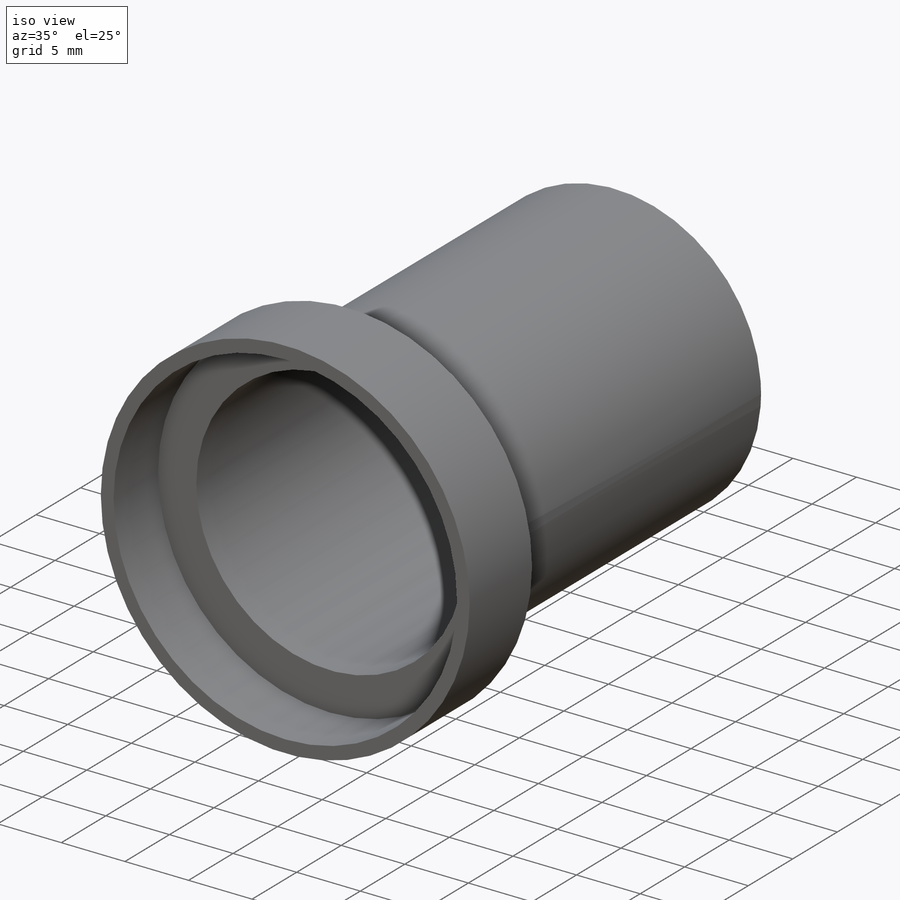
[diagram: iso view]
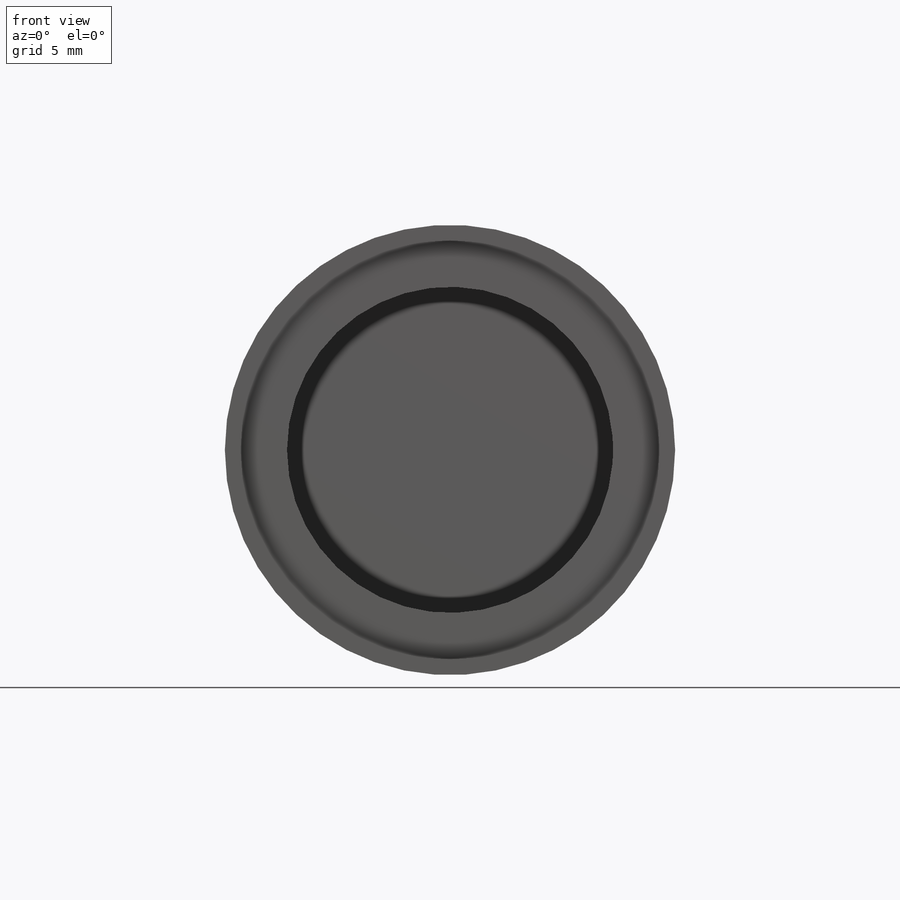
[diagram: front view]
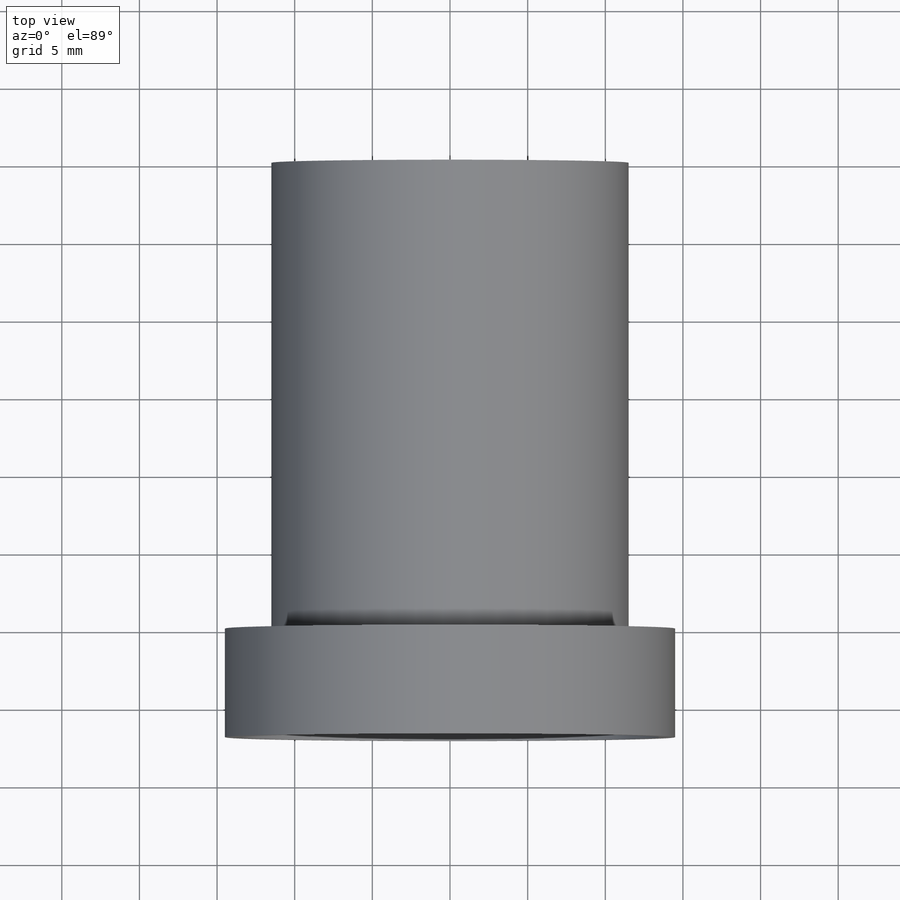
[diagram: top view]
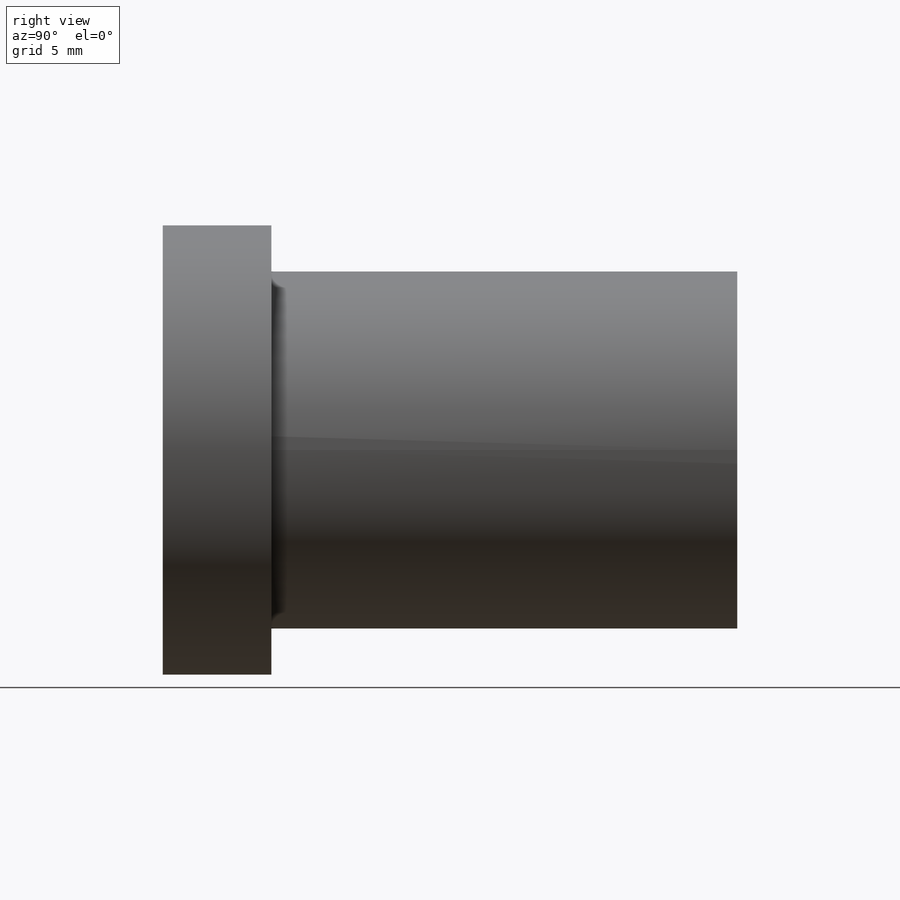
[diagram: right view]
SOLIDWORKS PART (.sldprt)
format: sldprt  version: not decoded by parser v0  size: 487,936 bytes
history: native  units: mm
features: sketch x4, plane x3, extrude x2, cut_extrude x2, material x1 + 2 further entries (+11 scaffold rows collapsed)
feature tree (25):
  scaffold x11  (default folders/planes/origin — collapsed)
  material  "材料 <未指定>"
  "ｻｰﾌｪｽ ﾎﾞﾃﾞｨ"
  "ｿﾘｯﾄﾞ ﾎﾞﾃﾞｨ"
  plane  "正面"
  plane  "平面"
  plane  "右側面"
  sketch  "ｽｹｯﾁ1"  dims[D1=23.0mm]
  extrude  "ﾎﾞｽ - 押し出し1"  Depth=30mm
  sketch  "ｽｹｯﾁ3"  dims[D1=29.0mm]
  extrude  "ﾎﾞｽ - 押し出し2"  Depth=7mm
  sketch  "ｽｹｯﾁ4"  dims[D1=27.0mm]
  cut_extrude  "ｶｯﾄ - 押し出し3"  Depth=5mm
  sketch  "ｽｹｯﾁ2"  dims[D1=21.0mm]
  cut_extrude  "ｶｯﾄ - 押し出し2"  Depth=1mm
decode coverage: 8 of 8 modeling features carry decoded parameters; 2 rows unclassified (native names shown)
note: suppression state not decoded; provenance and decode notes live in map.json
